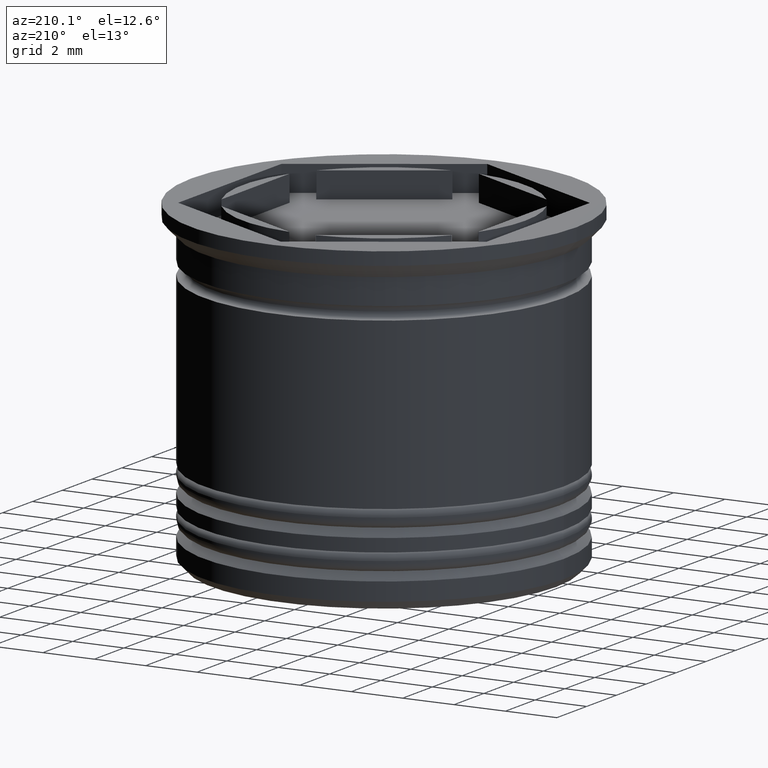
[diagram: clean part render]
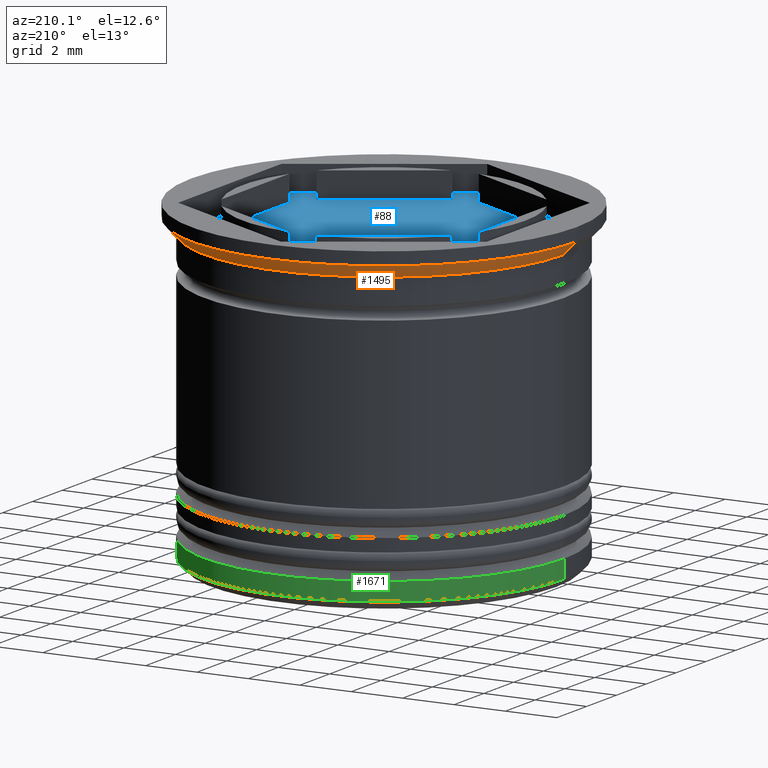
[diagram: same view with three faces highlighted in distinct colors, each labeled with its STEP entity id]
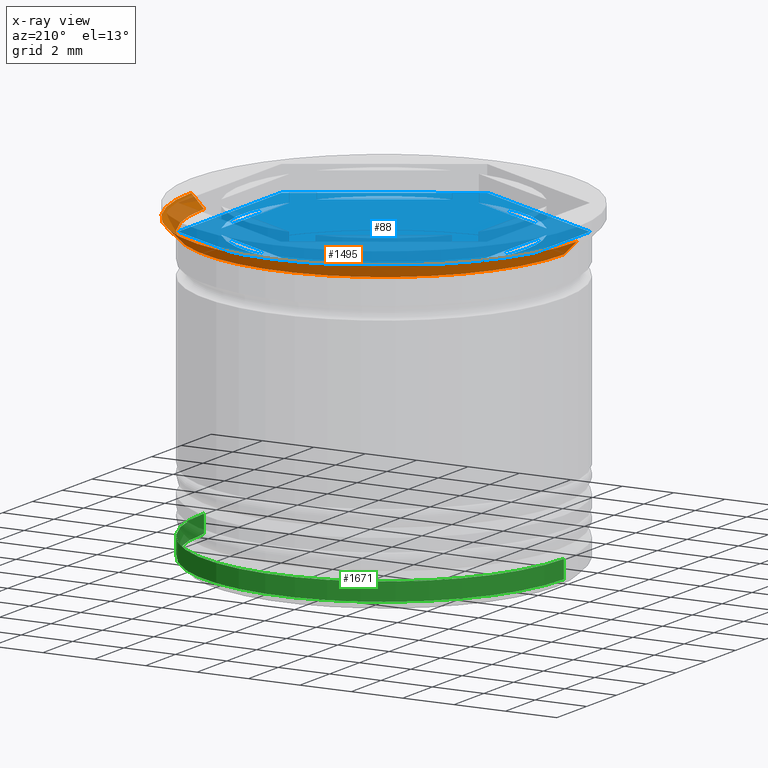
[diagram: x-ray of the same camera — body ghosted, the three highlighted faces saturated]
A machine part, auxiliary view with three faces highlighted in distinct colors.
The next image is the same camera in x-ray (body ghosted, the three faces saturated) — at least one of them is partly hidden behind the body in this view.
Their STEP definitions:

[orange] entity #1495 — the highlighted conical surface has half-angle 45 deg.
#60 = CONICAL_SURFACE ( 'NONE', #1696, 7.500000000000000000, 0.7853981633974500554 ) ;
#146 = ORIENTED_EDGE ( 'NONE', *, *, #401, .F. ) ;
#347 = CIRCLE ( 'NONE', #1113, 7.500000000000000000 ) ;
#356 = DIRECTION ( 'NONE',  ( -0.7071067811865487940, 8.659560562354948882E-17, 0.7071067811865463515 ) ) ;
#357 = VERTEX_POINT ( 'NONE', #840 ) ;
#362 = DIRECTION ( 'NONE',  ( -1.000000000000000000, 0.000000000000000000, 0.000000000000000000 ) ) ;
#384 = CARTESIAN_POINT ( 'NONE',  ( 0.000000000000000000, 0.000000000000000000, -0.4999999999999930611 ) ) ;
#401 = EDGE_CURVE ( 'NONE', #357, #1835, #1837, .T. ) ;
#442 = CARTESIAN_POINT ( 'NONE',  ( 7.500000000000000000, 0.000000000000000000, -0.4999999999999930611 ) ) ;
#463 = CARTESIAN_POINT ( 'NONE',  ( 7.500000000000000000, 0.000000000000000000, -0.4999999999999930611 ) ) ;
#480 = EDGE_LOOP ( 'NONE', ( #731, #1282, #1589, #146 ) ) ;
#501 = DIRECTION ( 'NONE',  ( -0.000000000000000000, -0.000000000000000000, 1.000000000000000000 ) ) ;
#510 = DIRECTION ( 'NONE',  ( -0.000000000000000000, -0.000000000000000000, 1.000000000000000000 ) ) ;
#606 = LINE ( 'NONE', #1521, #1176 ) ;
#716 = CARTESIAN_POINT ( 'NONE',  ( -7.500000000000000000, 9.184850993605147944E-16, -0.4999999999999930611 ) ) ;
#731 = ORIENTED_EDGE ( 'NONE', *, *, #1260, .T. ) ;
#840 = CARTESIAN_POINT ( 'NONE',  ( 6.999999999999999112, 0.000000000000000000, -0.9999999999999995559 ) ) ;
#870 = FACE_OUTER_BOUND ( 'NONE', #480, .T. ) ;
#888 = AXIS2_PLACEMENT_3D ( 'NONE', #1387, #510, #1083 ) ;
#961 = VERTEX_POINT ( 'NONE', #716 ) ;
#1052 = DIRECTION ( 'NONE',  ( 1.000000000000000000, 0.000000000000000000, 0.000000000000000000 ) ) ;
#1076 = VECTOR ( 'NONE', #1681, 1000.000000000000000 ) ;
#1083 = DIRECTION ( 'NONE',  ( 1.000000000000000000, 0.000000000000000000, 0.000000000000000000 ) ) ;
#1113 = AXIS2_PLACEMENT_3D ( 'NONE', #384, #501, #362 ) ;
#1176 = VECTOR ( 'NONE', #356, 1000.000000000000000 ) ;
#1198 = EDGE_CURVE ( 'NONE', #1743, #961, #606, .T. ) ;
#1260 = EDGE_CURVE ( 'NONE', #357, #1743, #1395, .T. ) ;
#1282 = ORIENTED_EDGE ( 'NONE', *, *, #1198, .T. ) ;
#1387 = CARTESIAN_POINT ( 'NONE',  ( 0.000000000000000000, 0.000000000000000000, -0.9999999999999995559 ) ) ;
#1395 = CIRCLE ( 'NONE', #888, 6.999999999999999112 ) ;
#1495 = ADVANCED_FACE ( 'NONE', ( #870 ), #60, .T. ) ;
#1521 = CARTESIAN_POINT ( 'NONE',  ( -7.500000000000000000, 9.184850993605147944E-16, -0.4999999999999930611 ) ) ;
#1547 = DIRECTION ( 'NONE',  ( -0.000000000000000000, -0.000000000000000000, 1.000000000000000000 ) ) ;
#1589 = ORIENTED_EDGE ( 'NONE', *, *, #1651, .F. ) ;
#1651 = EDGE_CURVE ( 'NONE', #1835, #961, #347, .T. ) ;
#1681 = DIRECTION ( 'NONE',  ( 0.7071067811865487940, 0.000000000000000000, 0.7071067811865463515 ) ) ;
#1696 = AXIS2_PLACEMENT_3D ( 'NONE', #1950, #1547, #1052 ) ;
#1743 = VERTEX_POINT ( 'NONE', #1785 ) ;
#1785 = CARTESIAN_POINT ( 'NONE',  ( -6.999999999999999112, 8.572527594031472204E-16, -0.9999999999999995559 ) ) ;
#1835 = VERTEX_POINT ( 'NONE', #442 ) ;
#1837 = LINE ( 'NONE', #463, #1076 ) ;
#1950 = CARTESIAN_POINT ( 'NONE',  ( 0.000000000000000000, 0.000000000000000000, -0.4999999999999930611 ) ) ;

[blue] entity #88 — the highlighted planar face has unit normal (0, 0, 1).
#10 = VERTEX_POINT ( 'NONE', #1338 ) ;
#30 = VERTEX_POINT ( 'NONE', #269 ) ;
#45 = DIRECTION ( 'NONE',  ( 0.000000000000000000, 0.000000000000000000, 1.000000000000000000 ) ) ;
#77 = FACE_BOUND ( 'NONE', #89, .T. ) ;
#88 = ADVANCED_FACE ( 'NONE', ( #1932, #77, #693, #405, #1301, #1152, #1013 ), #578, .T. ) ;
#89 = EDGE_LOOP ( 'NONE', ( #618, #996 ) ) ;
#90 = CARTESIAN_POINT ( 'NONE',  ( 6.000000000000000000, -3.464101615137753942, -1.000000000000000000 ) ) ;
#108 = AXIS2_PLACEMENT_3D ( 'NONE', #207, #1741, #821 ) ;
#113 = EDGE_LOOP ( 'NONE', ( #876, #900, #1054 ) ) ;
#125 = EDGE_CURVE ( 'NONE', #555, #939, #1530, .T. ) ;
#154 = CARTESIAN_POINT ( 'NONE',  ( 0.000000000000000000, 0.000000000000000000, -1.000000000000000000 ) ) ;
#186 = EDGE_CURVE ( 'NONE', #10, #270, #1042, .T. ) ;
#203 = VERTEX_POINT ( 'NONE', #1847 ) ;
#204 = CARTESIAN_POINT ( 'NONE',  ( -3.394223061414856671E-17, -6.928203230275509661, -1.000000000000000000 ) ) ;
#207 = CARTESIAN_POINT ( 'NONE',  ( 0.000000000000000000, 0.000000000000000000, -1.000000000000000000 ) ) ;
#218 = DIRECTION ( 'NONE',  ( 0.000000000000000000, 0.000000000000000000, 1.000000000000000000 ) ) ;
#241 = CARTESIAN_POINT ( 'NONE',  ( -5.999999999999999112, 3.464101615137752610, -1.000000000000000000 ) ) ;
#253 = VERTEX_POINT ( 'NONE', #527 ) ;
#254 = LINE ( 'NONE', #90, #382 ) ;
#269 = CARTESIAN_POINT ( 'NONE',  ( 0.5156865167015560747, -5.475770942661154272, -1.000000000000000888 ) ) ;
#270 = VERTEX_POINT ( 'NONE', #1411 ) ;
#272 = EDGE_CURVE ( 'NONE', #511, #538, #631, .T. ) ;
#288 = EDGE_CURVE ( 'NONE', #1064, #1967, #1263, .T. ) ;
#313 = AXIS2_PLACEMENT_3D ( 'NONE', #557, #1146, #1764 ) ;
#321 = EDGE_LOOP ( 'NONE', ( #1608, #1733 ) ) ;
#332 = DIRECTION ( 'NONE',  ( 1.000000000000000000, 0.000000000000000000, 0.000000000000000000 ) ) ;
#333 = DIRECTION ( 'NONE',  ( -3.004629197474317076E-16, -1.000000000000000000, 0.000000000000000000 ) ) ;
#337 = EDGE_CURVE ( 'NONE', #203, #253, #1638, .T. ) ;
#351 = DIRECTION ( 'NONE',  ( -0.8660254037844385966, -0.4999999999999998890, 0.000000000000000000 ) ) ;
#366 = CARTESIAN_POINT ( 'NONE',  ( 0.000000000000000000, 6.928203230275509661, -1.000000000000000000 ) ) ;
#382 = VECTOR ( 'NONE', #836, 1000.000000000000000 ) ;
#385 = VERTEX_POINT ( 'NONE', #1673 ) ;
#405 = FACE_BOUND ( 'NONE', #321, .T. ) ;
#412 = VECTOR ( 'NONE', #1005, 1000.000000000000000 ) ;
#420 = EDGE_CURVE ( 'NONE', #270, #10, #759, .T. ) ;
#431 = ORIENTED_EDGE ( 'NONE', *, *, #1035, .F. ) ;
#462 = EDGE_CURVE ( 'NONE', #1656, #30, #1396, .T. ) ;
#484 = CARTESIAN_POINT ( 'NONE',  ( 5.000000000000000888, 2.291287847477922135, -1.000000000000000888 ) ) ;
#511 = VERTEX_POINT ( 'NONE', #484 ) ;
#515 = EDGE_CURVE ( 'NONE', #824, #1196, #785, .T. ) ;
#516 = CARTESIAN_POINT ( 'NONE',  ( 0.000000000000000000, 0.000000000000000000, -1.000000000000000000 ) ) ;
#527 = CARTESIAN_POINT ( 'NONE',  ( 0.000000000000000000, 6.928203230275509661, -1.000000000000000000 ) ) ;
#538 = VERTEX_POINT ( 'NONE', #1120 ) ;
#548 = EDGE_CURVE ( 'NONE', #1967, #385, #1427, .T. ) ;
#549 = CARTESIAN_POINT ( 'NONE',  ( 6.000000000000000000, -3.464101615137753942, -1.000000000000000000 ) ) ;
#555 = VERTEX_POINT ( 'NONE', #204 ) ;
#557 = CARTESIAN_POINT ( 'NONE',  ( 0.000000000000000000, 0.000000000000000000, -1.000000000000000000 ) ) ;
#561 = DIRECTION ( 'NONE',  ( 0.8660254037844387076, -0.4999999999999998335, 0.000000000000000000 ) ) ;
#565 = VECTOR ( 'NONE', #333, 1000.000000000000000 ) ;
#576 = DIRECTION ( 'NONE',  ( -0.8660254037844383745, -0.5000000000000003331, 0.000000000000000000 ) ) ;
#578 = PLANE ( 'NONE',  #978 ) ;
#590 = DIRECTION ( 'NONE',  ( 0.8660254037844385966, 0.5000000000000001110, -0.000000000000000000 ) ) ;
#608 = LINE ( 'NONE', #1215, #1618 ) ;
#615 = LINE ( 'NONE', #1503, #1982 ) ;
#618 = ORIENTED_EDGE ( 'NONE', *, *, #671, .F. ) ;
#627 = AXIS2_PLACEMENT_3D ( 'NONE', #1737, #798, #659 ) ;
#631 = LINE ( 'NONE', #1130, #565 ) ;
#659 = DIRECTION ( 'NONE',  ( 1.000000000000000000, 0.000000000000000000, 0.000000000000000000 ) ) ;
#660 = DIRECTION ( 'NONE',  ( 1.000000000000000000, 0.000000000000000000, 0.000000000000000000 ) ) ;
#667 = VERTEX_POINT ( 'NONE', #1305 ) ;
#669 = ORIENTED_EDGE ( 'NONE', *, *, #1424, .T. ) ;
#671 = EDGE_CURVE ( 'NONE', #538, #511, #822, .T. ) ;
#693 = FACE_BOUND ( 'NONE', #1575, .T. ) ;
#694 = AXIS2_PLACEMENT_3D ( 'NONE', #154, #770, #1374 ) ;
#699 = VECTOR ( 'NONE', #862, 1000.000000000000000 ) ;
#706 = VERTEX_POINT ( 'NONE', #1965 ) ;
#719 = CARTESIAN_POINT ( 'NONE',  ( 0.000000000000000000, 0.000000000000000000, -1.000000000000000000 ) ) ;
#735 = ORIENTED_EDGE ( 'NONE', *, *, #515, .F. ) ;
#743 = EDGE_CURVE ( 'NONE', #1196, #824, #608, .T. ) ;
#759 = CIRCLE ( 'NONE', #694, 5.500000000000001776 ) ;
#770 = DIRECTION ( 'NONE',  ( 0.000000000000000000, 0.000000000000000000, 1.000000000000000000 ) ) ;
#774 = ORIENTED_EDGE ( 'NONE', *, *, #1122, .T. ) ;
#785 = CIRCLE ( 'NONE', #852, 5.500000000000001776 ) ;
#798 = DIRECTION ( 'NONE',  ( 0.000000000000000000, 0.000000000000000000, 1.000000000000000000 ) ) ;
#818 = EDGE_LOOP ( 'NONE', ( #1451, #1795 ) ) ;
#821 = DIRECTION ( 'NONE',  ( 1.000000000000000000, 0.000000000000000000, 0.000000000000000000 ) ) ;
#822 = CIRCLE ( 'NONE', #1139, 5.500000000000001776 ) ;
#824 = VERTEX_POINT ( 'NONE', #1415 ) ;
#827 = CARTESIAN_POINT ( 'NONE',  ( -5.000000000000000888, 2.886751345948129099, -1.000000000000000888 ) ) ;
#832 = CARTESIAN_POINT ( 'NONE',  ( 4.484313483298444147, -3.184483095183233914, -1.000000000000000888 ) ) ;
#836 = DIRECTION ( 'NONE',  ( 0.000000000000000000, 1.000000000000000000, 0.000000000000000000 ) ) ;
#839 = ORIENTED_EDGE ( 'NONE', *, *, #1417, .T. ) ;
#852 = AXIS2_PLACEMENT_3D ( 'NONE', #516, #1088, #332 ) ;
#862 = DIRECTION ( 'NONE',  ( -1.251928832280966188E-16, -1.000000000000000000, 0.000000000000000000 ) ) ;
#874 = CARTESIAN_POINT ( 'NONE',  ( -6.000000000000000000, -3.464101615137755719, -1.000000000000000000 ) ) ;
#876 = ORIENTED_EDGE ( 'NONE', *, *, #288, .F. ) ;
#894 = CARTESIAN_POINT ( 'NONE',  ( 5.000000000000000888, 2.886751345948130876, -1.000000000000000888 ) ) ;
#900 = ORIENTED_EDGE ( 'NONE', *, *, #985, .F. ) ;
#918 = ORIENTED_EDGE ( 'NONE', *, *, #337, .T. ) ;
#939 = VERTEX_POINT ( 'NONE', #549 ) ;
#948 = EDGE_CURVE ( 'NONE', #939, #203, #254, .T. ) ;
#950 = CARTESIAN_POINT ( 'NONE',  ( -8.673617379884035472E-16, -5.773502691896259087, -1.000000000000000888 ) ) ;
#970 = VERTEX_POINT ( 'NONE', #241 ) ;
#978 = AXIS2_PLACEMENT_3D ( 'NONE', #1770, #1607, #1620 ) ;
#985 = EDGE_CURVE ( 'NONE', #385, #1064, #1912, .T. ) ;
#990 = ORIENTED_EDGE ( 'NONE', *, *, #743, .F. ) ;
#992 = EDGE_LOOP ( 'NONE', ( #918, #669, #839, #774, #1812, #1093 ) ) ;
#996 = ORIENTED_EDGE ( 'NONE', *, *, #272, .F. ) ;
#1005 = DIRECTION ( 'NONE',  ( 0.000000000000000000, 1.000000000000000000, 0.000000000000000000 ) ) ;
#1010 = CARTESIAN_POINT ( 'NONE',  ( -5.999999999999999112, 3.464101615137752610, -1.000000000000000000 ) ) ;
#1013 = FACE_OUTER_BOUND ( 'NONE', #992, .T. ) ;
#1035 = EDGE_CURVE ( 'NONE', #30, #1656, #1078, .T. ) ;
#1042 = LINE ( 'NONE', #1654, #1848 ) ;
#1054 = ORIENTED_EDGE ( 'NONE', *, *, #548, .F. ) ;
#1064 = VERTEX_POINT ( 'NONE', #1658 ) ;
#1069 = DIRECTION ( 'NONE',  ( -0.8660254037844385966, 0.5000000000000001110, 0.000000000000000000 ) ) ;
#1077 = VERTEX_POINT ( 'NONE', #874 ) ;
#1078 = CIRCLE ( 'NONE', #313, 5.500000000000001776 ) ;
#1088 = DIRECTION ( 'NONE',  ( 0.000000000000000000, 0.000000000000000000, 1.000000000000000000 ) ) ;
#1093 = ORIENTED_EDGE ( 'NONE', *, *, #948, .T. ) ;
#1120 = CARTESIAN_POINT ( 'NONE',  ( 4.999999999999999112, -2.291287847477924355, -1.000000000000000888 ) ) ;
#1122 = EDGE_CURVE ( 'NONE', #1077, #555, #615, .T. ) ;
#1130 = CARTESIAN_POINT ( 'NONE',  ( 4.999999999999999112, -2.886751345948130432, -1.000000000000000888 ) ) ;
#1139 = AXIS2_PLACEMENT_3D ( 'NONE', #719, #218, #1927 ) ;
#1146 = DIRECTION ( 'NONE',  ( 0.000000000000000000, 0.000000000000000000, 1.000000000000000000 ) ) ;
#1152 = FACE_BOUND ( 'NONE', #1602, .T. ) ;
#1184 = CARTESIAN_POINT ( 'NONE',  ( -4.484313483298445036, 3.184483095183233470, -1.000000000000000888 ) ) ;
#1189 = DIRECTION ( 'NONE',  ( 0.8660254037844385966, 0.5000000000000001110, 0.000000000000000000 ) ) ;
#1196 = VERTEX_POINT ( 'NONE', #1184 ) ;
#1203 = VECTOR ( 'NONE', #561, 1000.000000000000114 ) ;
#1207 = CIRCLE ( 'NONE', #1659, 5.500000000000001776 ) ;
#1215 = CARTESIAN_POINT ( 'NONE',  ( 4.336808689942017736E-16, 5.773502691896259087, -1.000000000000000888 ) ) ;
#1232 = VECTOR ( 'NONE', #351, 1000.000000000000227 ) ;
#1263 = CIRCLE ( 'NONE', #108, 5.500000000000001776 ) ;
#1301 = FACE_BOUND ( 'NONE', #113, .T. ) ;
#1305 = CARTESIAN_POINT ( 'NONE',  ( 0.5156865167015596274, 5.475770942661155161, -1.000000000000000888 ) ) ;
#1308 = LINE ( 'NONE', #894, #1203 ) ;
#1338 = CARTESIAN_POINT ( 'NONE',  ( -0.5156865167015569629, -5.475770942661155161, -1.000000000000000888 ) ) ;
#1357 = EDGE_CURVE ( 'NONE', #667, #706, #1308, .T. ) ;
#1374 = DIRECTION ( 'NONE',  ( 1.000000000000000000, 0.000000000000000000, 0.000000000000000000 ) ) ;
#1392 = CARTESIAN_POINT ( 'NONE',  ( -5.500000000000001776, 0.000000000000000000, -1.000000000000000000 ) ) ;
#1396 = LINE ( 'NONE', #950, #1232 ) ;
#1411 = CARTESIAN_POINT ( 'NONE',  ( -4.484313483298445036, -3.184483095183233470, -1.000000000000000888 ) ) ;
#1415 = CARTESIAN_POINT ( 'NONE',  ( -0.5156865167015569629, 5.475770942661155161, -1.000000000000000888 ) ) ;
#1417 = EDGE_CURVE ( 'NONE', #970, #1077, #1434, .T. ) ;
#1419 = CARTESIAN_POINT ( 'NONE',  ( 0.000000000000000000, 0.000000000000000000, -1.000000000000000000 ) ) ;
#1424 = EDGE_CURVE ( 'NONE', #253, #970, #1486, .T. ) ;
#1427 = CIRCLE ( 'NONE', #627, 5.500000000000001776 ) ;
#1434 = LINE ( 'NONE', #1010, #699 ) ;
#1451 = ORIENTED_EDGE ( 'NONE', *, *, #1629, .F. ) ;
#1486 = LINE ( 'NONE', #366, #1822 ) ;
#1503 = CARTESIAN_POINT ( 'NONE',  ( -6.000000000000000000, -3.464101615137755719, -1.000000000000000000 ) ) ;
#1508 = CARTESIAN_POINT ( 'NONE',  ( -3.394223061414856671E-17, -6.928203230275509661, -1.000000000000000000 ) ) ;
#1518 = VECTOR ( 'NONE', #1189, 1000.000000000000000 ) ;
#1530 = LINE ( 'NONE', #1508, #1518 ) ;
#1575 = EDGE_LOOP ( 'NONE', ( #431, #1889 ) ) ;
#1602 = EDGE_LOOP ( 'NONE', ( #735, #990 ) ) ;
#1607 = DIRECTION ( 'NONE',  ( 0.000000000000000000, 0.000000000000000000, 1.000000000000000000 ) ) ;
#1608 = ORIENTED_EDGE ( 'NONE', *, *, #420, .F. ) ;
#1618 = VECTOR ( 'NONE', #590, 1000.000000000000000 ) ;
#1620 = DIRECTION ( 'NONE',  ( 1.000000000000000000, 0.000000000000000000, -0.000000000000000000 ) ) ;
#1629 = EDGE_CURVE ( 'NONE', #706, #667, #1207, .T. ) ;
#1638 = LINE ( 'NONE', #1922, #1686 ) ;
#1654 = CARTESIAN_POINT ( 'NONE',  ( -5.000000000000000888, -2.886751345948129543, -1.000000000000000888 ) ) ;
#1656 = VERTEX_POINT ( 'NONE', #832 ) ;
#1658 = CARTESIAN_POINT ( 'NONE',  ( -5.000000000000000888, 2.291287847477921247, -1.000000000000000888 ) ) ;
#1659 = AXIS2_PLACEMENT_3D ( 'NONE', #1419, #45, #660 ) ;
#1673 = CARTESIAN_POINT ( 'NONE',  ( -5.000000000000000888, -2.291287847477921247, -1.000000000000000888 ) ) ;
#1677 = DIRECTION ( 'NONE',  ( 0.8660254037844387076, -0.4999999999999999445, 0.000000000000000000 ) ) ;
#1686 = VECTOR ( 'NONE', #1801, 1000.000000000000227 ) ;
#1733 = ORIENTED_EDGE ( 'NONE', *, *, #186, .F. ) ;
#1737 = CARTESIAN_POINT ( 'NONE',  ( 0.000000000000000000, 0.000000000000000000, -1.000000000000000000 ) ) ;
#1741 = DIRECTION ( 'NONE',  ( 0.000000000000000000, 0.000000000000000000, 1.000000000000000000 ) ) ;
#1764 = DIRECTION ( 'NONE',  ( 1.000000000000000000, 0.000000000000000000, 0.000000000000000000 ) ) ;
#1770 = CARTESIAN_POINT ( 'NONE',  ( 0.000000000000000000, 0.000000000000000000, -1.000000000000000000 ) ) ;
#1795 = ORIENTED_EDGE ( 'NONE', *, *, #1357, .F. ) ;
#1801 = DIRECTION ( 'NONE',  ( -0.8660254037844387076, 0.4999999999999997780, 0.000000000000000000 ) ) ;
#1812 = ORIENTED_EDGE ( 'NONE', *, *, #125, .T. ) ;
#1822 = VECTOR ( 'NONE', #576, 1000.000000000000114 ) ;
#1847 = CARTESIAN_POINT ( 'NONE',  ( 6.000000000000000000, 3.464101615137757051, -1.000000000000000000 ) ) ;
#1848 = VECTOR ( 'NONE', #1069, 1000.000000000000000 ) ;
#1889 = ORIENTED_EDGE ( 'NONE', *, *, #462, .F. ) ;
#1912 = LINE ( 'NONE', #827, #412 ) ;
#1922 = CARTESIAN_POINT ( 'NONE',  ( 6.000000000000000000, 3.464101615137757051, -1.000000000000000000 ) ) ;
#1927 = DIRECTION ( 'NONE',  ( 1.000000000000000000, 0.000000000000000000, 0.000000000000000000 ) ) ;
#1932 = FACE_BOUND ( 'NONE', #818, .T. ) ;
#1965 = CARTESIAN_POINT ( 'NONE',  ( 4.484313483298442371, 3.184483095183238355, -1.000000000000000888 ) ) ;
#1967 = VERTEX_POINT ( 'NONE', #1392 ) ;
#1982 = VECTOR ( 'NONE', #1677, 1000.000000000000000 ) ;

[green] entity #1671 — the highlighted cylindrical surface (partial cylindrical patch) has radius 7 mm, axis along (-0, -0, 1).
#25 = CYLINDRICAL_SURFACE ( 'NONE', #150, 7.000000000000000888 ) ;
#111 = CARTESIAN_POINT ( 'NONE',  ( 0.000000000000000000, 0.000000000000000000, -12.19999999999999574 ) ) ;
#131 = DIRECTION ( 'NONE',  ( -0.000000000000000000, -0.000000000000000000, 1.000000000000000000 ) ) ;
#150 = AXIS2_PLACEMENT_3D ( 'NONE', #639, #492, #1247 ) ;
#325 = CARTESIAN_POINT ( 'NONE',  ( -7.000000000000000888, 8.572527594031474176E-16, -12.19999999999999574 ) ) ;
#489 = CARTESIAN_POINT ( 'NONE',  ( 7.000000000000000888, 0.000000000000000000, 0.000000000000000000 ) ) ;
#492 = DIRECTION ( 'NONE',  ( -0.000000000000000000, -0.000000000000000000, 1.000000000000000000 ) ) ;
#552 = VERTEX_POINT ( 'NONE', #1576 ) ;
#637 = ORIENTED_EDGE ( 'NONE', *, *, #1908, .F. ) ;
#639 = CARTESIAN_POINT ( 'NONE',  ( 0.000000000000000000, 0.000000000000000000, 0.000000000000000000 ) ) ;
#645 = LINE ( 'NONE', #489, #1583 ) ;
#704 = EDGE_CURVE ( 'NONE', #1031, #1573, #1488, .T. ) ;
#857 = CIRCLE ( 'NONE', #1331, 7.000000000000000888 ) ;
#884 = CARTESIAN_POINT ( 'NONE',  ( -7.000000000000000888, 8.572527594031474176E-16, 0.000000000000000000 ) ) ;
#910 = ORIENTED_EDGE ( 'NONE', *, *, #1241, .T. ) ;
#956 = CARTESIAN_POINT ( 'NONE',  ( 0.000000000000000000, 0.000000000000000000, -11.50000000000000533 ) ) ;
#959 = FACE_OUTER_BOUND ( 'NONE', #1443, .T. ) ;
#964 = DIRECTION ( 'NONE',  ( -1.000000000000000000, 0.000000000000000000, 0.000000000000000000 ) ) ;
#966 = DIRECTION ( 'NONE',  ( -0.000000000000000000, -0.000000000000000000, 1.000000000000000000 ) ) ;
#1031 = VERTEX_POINT ( 'NONE', #1934 ) ;
#1112 = VECTOR ( 'NONE', #131, 1000.000000000000000 ) ;
#1131 = EDGE_CURVE ( 'NONE', #1573, #552, #1643, .T. ) ;
#1199 = AXIS2_PLACEMENT_3D ( 'NONE', #111, #1973, #1496 ) ;
#1241 = EDGE_CURVE ( 'NONE', #552, #1980, #857, .T. ) ;
#1247 = DIRECTION ( 'NONE',  ( 1.000000000000000000, 0.000000000000000000, 0.000000000000000000 ) ) ;
#1274 = DIRECTION ( 'NONE',  ( 0.000000000000000000, 0.000000000000000000, -1.000000000000000000 ) ) ;
#1304 = ORIENTED_EDGE ( 'NONE', *, *, #1131, .T. ) ;
#1331 = AXIS2_PLACEMENT_3D ( 'NONE', #956, #1274, #964 ) ;
#1443 = EDGE_LOOP ( 'NONE', ( #1885, #1304, #910, #637 ) ) ;
#1488 = CIRCLE ( 'NONE', #1199, 7.000000000000000888 ) ;
#1496 = DIRECTION ( 'NONE',  ( -1.000000000000000000, 0.000000000000000000, 0.000000000000000000 ) ) ;
#1573 = VERTEX_POINT ( 'NONE', #325 ) ;
#1576 = CARTESIAN_POINT ( 'NONE',  ( -7.000000000000000888, 8.572527594031474176E-16, -11.50000000000000533 ) ) ;
#1583 = VECTOR ( 'NONE', #966, 1000.000000000000000 ) ;
#1643 = LINE ( 'NONE', #884, #1112 ) ;
#1671 = ADVANCED_FACE ( 'NONE', ( #959 ), #25, .T. ) ;
#1725 = CARTESIAN_POINT ( 'NONE',  ( 7.000000000000000888, 0.000000000000000000, -11.50000000000000533 ) ) ;
#1885 = ORIENTED_EDGE ( 'NONE', *, *, #704, .T. ) ;
#1908 = EDGE_CURVE ( 'NONE', #1031, #1980, #645, .T. ) ;
#1934 = CARTESIAN_POINT ( 'NONE',  ( 7.000000000000000888, 0.000000000000000000, -12.19999999999999574 ) ) ;
#1973 = DIRECTION ( 'NONE',  ( -0.000000000000000000, -0.000000000000000000, 1.000000000000000000 ) ) ;
#1980 = VERTEX_POINT ( 'NONE', #1725 ) ;